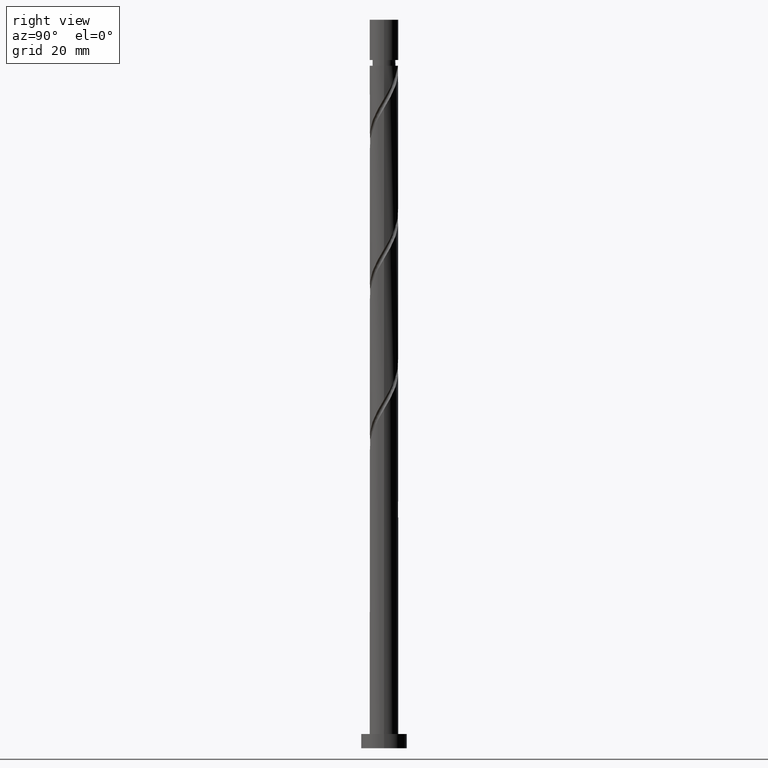
[diagram: clean part render]
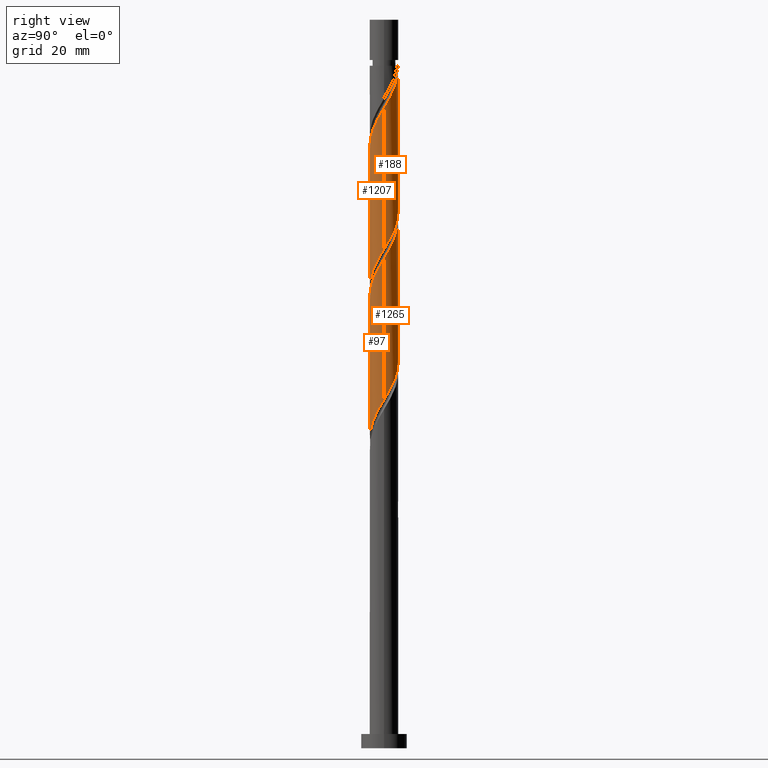
[diagram: same view with one multi-face feature highlighted, each face labeled with its STEP entity id]
A machine part, right view. The highlighted faces form ONE feature: a constant-radius fillet chain: 4 tangent blend faces with common blend radius 5 mm. The faces share edges in the B-rep.
Their STEP definitions:
[1] entity #97 (Cylinder):
#58 = CARTESIAN_POINT ( 'NONE',  ( 4.707916197378425593, -1.775642098820954251, 167.6577963200258523 ) ) ;
#63 = CARTESIAN_POINT ( 'NONE',  ( 5.000000000000007105, -5.597165070572337611E-16, 170.6707792421198064 ) ) ;
#65 = CARTESIAN_POINT ( 'NONE',  ( -3.210609744079814032, -3.833012532097933356, 151.7202963200258807 ) ) ;
#71 = CARTESIAN_POINT ( 'NONE',  ( 3.210609744079810035, -3.833012532097932468, 114.2202963200259234 ) ) ;
#75 = CARTESIAN_POINT ( 'NONE',  ( -4.900000000000006573, -0.9949874371066218526, 146.0952963200258239 ) ) ;
#92 = CARTESIAN_POINT ( 'NONE',  ( -1.547084842617166611, -4.787891840297518797, 105.7827963200259234 ) ) ;
#97 = ADVANCED_FACE ( 'NONE', ( #746 ), #1025, .T. ) ;
#100 = CARTESIAN_POINT ( 'NONE',  ( -3.833012532097932024, -3.210609744079810035, 101.0952963200259376 ) ) ;
#110 = CARTESIAN_POINT ( 'NONE',  ( -4.998552303470702896, -0.1203115516804380697, 95.47029632002598021 ) ) ;
#198 =( BOUNDED_CURVE ( )  B_SPLINE_CURVE ( 2, ( #812, #1881, #1117, #1276, #1849, #652, #672, #545, #71, #1237, #1839, #1126, #389, #1259, #520, #1703, #377, #92, #1268, #1728, #1869, #1722, #100, #406, #1582, #1167, #1144, #871, #110, #1452, #854 ),
 .UNSPECIFIED., .F., .T. ) 
 B_SPLINE_CURVE_WITH_KNOTS ( ( 3, 2, 2, 2, 2, 2, 2, 2, 2, 2, 2, 2, 2, 2, 2, 3 ),
 ( 0.8045303401299220836, 0.8125000000000000000, 0.8214285714285713969, 0.8303571428571429047, 0.8392857142857143016, 0.8482142857142856984, 0.8571428571428570953, 0.8660714285714286031, 0.8750000000000000000, 0.8839285714285713969, 0.8928571428571429047, 0.9017857142857143016, 0.9107142857142856984, 0.9196428571428570953, 0.9285714285714286031, 0.9295303401299224166 ),
 .UNSPECIFIED. ) 
 CURVE ( )  GEOMETRIC_REPRESENTATION_ITEM ( )  RATIONAL_B_SPLINE_CURVE ( ( 0.9079949616361926434, 0.9039886423360559142, 0.9090909090909224943, 0.9033747362665975889, 0.9090909090909224943, 0.9033747362665975889, 0.9090909090909224943, 0.9033747362665975889, 0.9090909090909224943, 0.9033747362665975889, 0.9090909090909224943, 0.9033747362665975889, 0.9090909090909224943, 0.9033747362665975889, 0.9090909090909224943, 0.9033747362665975889, 0.9090909090909224943, 0.9033747362665975889, 0.9090909090909224943, 0.9033747362665975889, 0.9090909090909224943, 0.9033747362665975889, 0.9090909090909224943, 0.9033747362665975889, 0.9090909090909224943, 0.9033747362665975889, 0.9090909090909224943, 0.9033747362665975889, 0.9090909090909224943, 0.9084770030214640579, 0.9079949616361921994 ) ) 
 REPRESENTATION_ITEM ( '' )  );
#199 = CARTESIAN_POINT ( 'NONE',  ( -4.323590631524826478, -2.573702359565722020, 148.9077963200258807 ) ) ;
#210 = CARTESIAN_POINT ( 'NONE',  ( -4.787891840297527679, -1.547084842617167055, 147.0327963200258523 ) ) ;
#219 = ORIENTED_EDGE ( 'NONE', *, *, #1058, .F. ) ;
#227 = CARTESIAN_POINT ( 'NONE',  ( 4.451338784106885882, -2.277187526117663285, 166.7202963200258523 ) ) ;
#258 = DIRECTION ( 'NONE',  ( -0.000000000000000000, -0.000000000000000000, -1.000000000000000000 ) ) ;
#261 = ORIENTED_EDGE ( 'NONE', *, *, #1032, .F. ) ;
#352 = CARTESIAN_POINT ( 'NONE',  ( 3.022483026463119060, -3.983038583135042110, 162.9702963200258239 ) ) ;
#360 = CARTESIAN_POINT ( 'NONE',  ( -3.983038583135042110, -3.022483026463119060, 149.8452963200259092 ) ) ;
#370 = CARTESIAN_POINT ( 'NONE',  ( 3.471263693360518765, -3.642486534745257742, 163.9077963200258807 ) ) ;
#377 = CARTESIAN_POINT ( 'NONE',  ( -0.9949874371066225187, -4.900000000000001243, 106.7202963200259234 ) ) ;
#389 = CARTESIAN_POINT ( 'NONE',  ( 1.229577616888952285, -4.846456322308672959, 110.4702963200259234 ) ) ;
#406 = CARTESIAN_POINT ( 'NONE',  ( -4.194761370835347059, -2.778732953414366769, 100.1577963200258949 ) ) ;
#453 = LINE ( 'NONE', #1758, #934 ) ;
#485 = CARTESIAN_POINT ( 'NONE',  ( 4.984996447238924766, -0.6835131349569570913, 169.5327963200259092 ) ) ;
#493 = CARTESIAN_POINT ( 'NONE',  ( -5.000000000000007994, -8.955464112915739142E-17, 144.4207792421198917 ) ) ;
#514 = CARTESIAN_POINT ( 'NONE',  ( 5.000000000000000000, 6.123233995736766282E-16, 254.0000000000000000 ) ) ;
#520 = CARTESIAN_POINT ( 'NONE',  ( 0.1203115516804378615, -4.998552303470702896, 108.5952963200259234 ) ) ;
#545 = CARTESIAN_POINT ( 'NONE',  ( 3.642486534745251969, -3.471263693360514768, 115.1577963200258807 ) ) ;
#638 = CARTESIAN_POINT ( 'NONE',  ( -2.778732953414371654, -4.194761370835351499, 152.6577963200258523 ) ) ;
#647 = CARTESIAN_POINT ( 'NONE',  ( 4.998552303470706448, -0.1203115516804401514, 170.4702963200257955 ) ) ;
#652 = CARTESIAN_POINT ( 'NONE',  ( 4.323590631524821148, -2.573702359565720688, 117.0327963200259234 ) ) ;
#655 = CARTESIAN_POINT ( 'NONE',  ( -1.775642098820954251, -4.707916197378425593, 154.5327963200259092 ) ) ;
#666 = CARTESIAN_POINT ( 'NONE',  ( 2.573702359565722020, -4.323590631524826478, 162.0327963200259092 ) ) ;
#672 = CARTESIAN_POINT ( 'NONE',  ( 3.983038583135037225, -3.022483026463118172, 116.0952963200259518 ) ) ;
#746 = FACE_OUTER_BOUND ( 'NONE', #1065, .T. ) ;
#788 = CARTESIAN_POINT ( 'NONE',  ( -3.642486534745257742, -3.471263693360518765, 150.7827963200259092 ) ) ;
#799 = CARTESIAN_POINT ( 'NONE',  ( 4.194761370835351499, -2.778732953414372098, 165.7827963200258807 ) ) ;
#807 = CARTESIAN_POINT ( 'NONE',  ( -0.1203115516804397211, -4.998552303470706448, 157.3452963200258239 ) ) ;
#812 = CARTESIAN_POINT ( 'NONE',  ( 5.000000000000000000, -1.873184576951555267E-15, 121.5198133979319834 ) ) ;
#815 = CARTESIAN_POINT ( 'NONE',  ( 5.000000000000007105, -0.06016448583195296157, 170.5704165538947166 ) ) ;
#854 = CARTESIAN_POINT ( 'NONE',  ( -5.000000000000001776, 2.925451610219162544E-14, 95.26981339793194081 ) ) ;
#867 = VERTEX_POINT ( 'NONE', #1322 ) ;
#871 = CARTESIAN_POINT ( 'NONE',  ( -4.984996447238921213, -0.6835131349569537607, 96.40779632002589494 ) ) ;
#888 = DIRECTION ( 'NONE',  ( -0.000000000000000000, -0.000000000000000000, -1.000000000000000000 ) ) ;
#934 = VECTOR ( 'NONE', #258, 1000.000000000000000 ) ;
#975 = CARTESIAN_POINT ( 'NONE',  ( 5.000000000000000000, -1.873184576951555267E-15, 121.5198133979319834 ) ) ;
#999 = AXIS2_PLACEMENT_3D ( 'NONE', #1773, #888, #1218 ) ;
#1011 = ORIENTED_EDGE ( 'NONE', *, *, #1906, .T. ) ;
#1025 = CYLINDRICAL_SURFACE ( 'NONE', #999, 5.000000000000000000 ) ;
#1032 = EDGE_CURVE ( 'NONE', #1354, #1806, #1776, .T. ) ;
#1058 = EDGE_CURVE ( 'NONE', #1806, #1254, #1824, .T. ) ;
#1065 = EDGE_LOOP ( 'NONE', ( #219, #261, #1011, #1530 ) ) ;
#1072 = CARTESIAN_POINT ( 'NONE',  ( -4.555741235911176190, -2.060393601091443205, 147.9702963200258807 ) ) ;
#1079 = CARTESIAN_POINT ( 'NONE',  ( -1.229577616888955394, -4.846456322308677400, 155.4702963200258523 ) ) ;
#1100 = CARTESIAN_POINT ( 'NONE',  ( -2.277187526117662841, -4.451338784106885882, 153.5952963200258523 ) ) ;
#1110 = VECTOR ( 'NONE', #1833, 1000.000000000000000 ) ;
#1117 = CARTESIAN_POINT ( 'NONE',  ( 4.900000000000001243, -0.9949874371066227408, 119.8452963200259376 ) ) ;
#1126 = CARTESIAN_POINT ( 'NONE',  ( 1.775642098820950698, -4.707916197378419376, 111.4077963200259092 ) ) ;
#1144 = CARTESIAN_POINT ( 'NONE',  ( -4.846456322308672959, -1.229577616888952507, 97.34529632002595179 ) ) ;
#1167 = CARTESIAN_POINT ( 'NONE',  ( -4.707916197378419376, -1.775642098820950698, 98.28279632002590915 ) ) ;
#1171 = CARTESIAN_POINT ( 'NONE',  ( -5.000000000000007105, -8.955464112915740375E-17, 144.4207792421198917 ) ) ;
#1218 = DIRECTION ( 'NONE',  ( -1.000000000000000000, 0.000000000000000000, 0.000000000000000000 ) ) ;
#1224 = CARTESIAN_POINT ( 'NONE',  ( 5.000000000000007994, -5.597165070572337611E-16, 170.6707792421197780 ) ) ;
#1233 = CARTESIAN_POINT ( 'NONE',  ( 0.4428900315960768164, -5.012108159702486354, 158.2827963200259092 ) ) ;
#1237 = CARTESIAN_POINT ( 'NONE',  ( 2.778732953414366325, -4.194761370835347059, 113.2827963200259092 ) ) ;
#1243 = CARTESIAN_POINT ( 'NONE',  ( 0.9949874371066214085, -4.900000000000006573, 159.2202963200258239 ) ) ;
#1254 = VERTEX_POINT ( 'NONE', #975 ) ;
#1259 = CARTESIAN_POINT ( 'NONE',  ( 0.6835131349569536496, -4.984996447238921213, 109.5327963200258949 ) ) ;
#1268 = CARTESIAN_POINT ( 'NONE',  ( -2.060393601091443649, -4.555741235911171749, 104.8452963200259376 ) ) ;
#1276 = CARTESIAN_POINT ( 'NONE',  ( 4.787891840297518797, -1.547084842617166833, 118.9077963200258949 ) ) ;
#1322 = CARTESIAN_POINT ( 'NONE',  ( -5.000000000000002665, 2.925451610219162544E-14, 95.26981339793194081 ) ) ;
#1354 = VERTEX_POINT ( 'NONE', #1171 ) ;
#1377 = CARTESIAN_POINT ( 'NONE',  ( 3.833012532097933356, -3.210609744079814032, 164.8452963200258523 ) ) ;
#1386 = CARTESIAN_POINT ( 'NONE',  ( 2.060393601091443205, -4.555741235911176190, 161.0952963200258523 ) ) ;
#1395 = CARTESIAN_POINT ( 'NONE',  ( -0.6835131349569565362, -4.984996447238927431, 156.4077963200257955 ) ) ;
#1452 = CARTESIAN_POINT ( 'NONE',  ( -5.000000000000002665, -0.06016448583193004240, 95.37017608615704489 ) ) ;
#1529 = CARTESIAN_POINT ( 'NONE',  ( 1.547084842617166611, -4.787891840297527679, 160.1577963200259092 ) ) ;
#1530 = ORIENTED_EDGE ( 'NONE', *, *, #1855, .F. ) ;
#1582 = CARTESIAN_POINT ( 'NONE',  ( -4.451338784106884106, -2.277187526117659289, 99.22029632002593758 ) ) ;
#1696 = CARTESIAN_POINT ( 'NONE',  ( -5.000000000000001776, -0.5025189076296279200, 145.2590503210835209 ) ) ;
#1703 = CARTESIAN_POINT ( 'NONE',  ( -0.4428900315960780931, -5.012108159702478360, 107.6577963200258949 ) ) ;
#1722 = CARTESIAN_POINT ( 'NONE',  ( -3.471263693360514768, -3.642486534745251969, 102.0327963200259234 ) ) ;
#1728 = CARTESIAN_POINT ( 'NONE',  ( -2.573702359565720688, -4.323590631524821148, 103.9077963200259092 ) ) ;
#1758 = CARTESIAN_POINT ( 'NONE',  ( -5.000000000000000000, 0.000000000000000000, 254.0000000000000000 ) ) ;
#1773 = CARTESIAN_POINT ( 'NONE',  ( 0.000000000000000000, 0.000000000000000000, 254.0000000000000000 ) ) ;
#1776 =( BOUNDED_CURVE ( )  B_SPLINE_CURVE ( 2, ( #493, #1696, #75, #210, #1072, #199, #360, #788, #65, #638, #1100, #655, #1079, #1395, #807, #1233, #1243, #1529, #1386, #666, #352, #370, #1377, #799, #227, #58, #1842, #485, #647, #815, #1224 ),
 .UNSPECIFIED., .F., .T. ) 
 B_SPLINE_CURVE_WITH_KNOTS ( ( 3, 2, 2, 2, 2, 2, 2, 2, 2, 2, 2, 2, 2, 2, 2, 3 ),
 ( 0.3045303401299224166, 0.3125000000000000000, 0.3214285714285713969, 0.3303571428571429047, 0.3392857142857143016, 0.3482142857142856984, 0.3571428571428570953, 0.3660714285714286031, 0.3750000000000000000, 0.3839285714285713969, 0.3928571428571429047, 0.4017857142857143016, 0.4107142857142856984, 0.4196428571428570953, 0.4285714285714286031, 0.4295303401299220836 ),
 .UNSPECIFIED. ) 
 CURVE ( )  GEOMETRIC_REPRESENTATION_ITEM ( )  RATIONAL_B_SPLINE_CURVE ( ( 0.9079949616361986386, 0.9039886423360623535, 0.9090909090909289336, 0.9033747362666038061, 0.9090909090909289336, 0.9033747362666038061, 0.9090909090909289336, 0.9033747362666038061, 0.9090909090909289336, 0.9033747362666038061, 0.9090909090909289336, 0.9033747362666038061, 0.9090909090909289336, 0.9033747362666038061, 0.9090909090909289336, 0.9033747362666038061, 0.9090909090909289336, 0.9033747362666038061, 0.9090909090909289336, 0.9033747362666038061, 0.9090909090909289336, 0.9033747362666038061, 0.9090909090909289336, 0.9033747362666038061, 0.9090909090909289336, 0.9033747362666038061, 0.9090909090909289336, 0.9033747362666038061, 0.9090909090909289336, 0.9084770030214706082, 0.9079949616361988607 ) ) 
 REPRESENTATION_ITEM ( '' )  );
#1806 = VERTEX_POINT ( 'NONE', #63 ) ;
#1824 = LINE ( 'NONE', #514, #1110 ) ;
#1833 = DIRECTION ( 'NONE',  ( -0.000000000000000000, -0.000000000000000000, -1.000000000000000000 ) ) ;
#1839 = CARTESIAN_POINT ( 'NONE',  ( 2.277187526117657956, -4.451338784106884106, 112.3452963200259518 ) ) ;
#1842 = CARTESIAN_POINT ( 'NONE',  ( 4.846456322308677400, -1.229577616888955394, 168.5952963200258523 ) ) ;
#1849 = CARTESIAN_POINT ( 'NONE',  ( 4.555741235911171749, -2.060393601091444093, 117.9702963200259234 ) ) ;
#1855 = EDGE_CURVE ( 'NONE', #1254, #867, #198, .T. ) ;
#1869 = CARTESIAN_POINT ( 'NONE',  ( -3.022483026463118172, -3.983038583135037225, 102.9702963200259092 ) ) ;
#1881 = CARTESIAN_POINT ( 'NONE',  ( 4.999999999999999112, -0.5025189076296083801, 120.6815423189683543 ) ) ;
#1906 = EDGE_CURVE ( 'NONE', #1354, #867, #453, .T. ) ;
[2] entity #1265 (Cylinder):
#34 = CARTESIAN_POINT ( 'NONE',  ( 0.1203115516804404844, 4.998552303470705560, 183.5952963200258523 ) ) ;
#55 = CARTESIAN_POINT ( 'NONE',  ( -5.000000000000007994, 0.06016448583195928984, 196.8204165538947450 ) ) ;
#63 = CARTESIAN_POINT ( 'NONE',  ( 5.000000000000007105, -5.597165070572337611E-16, 170.6707792421198064 ) ) ;
#74 = CARTESIAN_POINT ( 'NONE',  ( 4.451338784106884106, 2.277187526117657956, 125.4702963200259376 ) ) ;
#94 = CARTESIAN_POINT ( 'NONE',  ( -1.775642098820951142, 4.707916197378419376, 137.6577963200259092 ) ) ;
#104 = CARTESIAN_POINT ( 'NONE',  ( 3.471263693360515212, 3.642486534745251081, 128.2827963200259376 ) ) ;
#113 = DIRECTION ( 'NONE',  ( -0.000000000000000000, -0.000000000000000000, -1.000000000000000000 ) ) ;
#214 = CARTESIAN_POINT ( 'NONE',  ( 1.775642098820955139, 4.707916197378424705, 180.7827963200258807 ) ) ;
#224 = DIRECTION ( 'NONE',  ( -0.000000000000000000, -0.000000000000000000, -1.000000000000000000 ) ) ;
#226 = CARTESIAN_POINT ( 'NONE',  ( -0.6835131349569543158, 4.984996447238921213, 135.7827963200258807 ) ) ;
#235 = CARTESIAN_POINT ( 'NONE',  ( 0.4428900315960774825, 5.012108159702478360, 133.9077963200258807 ) ) ;
#243 = CARTESIAN_POINT ( 'NONE',  ( -4.555741235911171749, 2.060393601091443649, 144.2202963200258807 ) ) ;
#252 = CARTESIAN_POINT ( 'NONE',  ( 0.9949874371066231848, 4.900000000000001243, 132.9702963200259376 ) ) ;
#262 = CYLINDRICAL_SURFACE ( 'NONE', #292, 5.000000000000000000 ) ;
#292 = AXIS2_PLACEMENT_3D ( 'NONE', #1575, #113, #1109 ) ;
#319 = CARTESIAN_POINT ( 'NONE',  ( -1.547084842617167277, 4.787891840297527679, 186.4077963200258807 ) ) ;
#332 = ORIENTED_EDGE ( 'NONE', *, *, #1818, .F. ) ;
#338 = CARTESIAN_POINT ( 'NONE',  ( 5.000000000000007105, 0.5025189076296064927, 171.5090503210834356 ) ) ;
#348 = CARTESIAN_POINT ( 'NONE',  ( -3.471263693360518765, 3.642486534745257742, 190.1577963200258807 ) ) ;
#358 = CARTESIAN_POINT ( 'NONE',  ( -4.846456322308677400, 1.229577616888954728, 194.8452963200258523 ) ) ;
#380 = CARTESIAN_POINT ( 'NONE',  ( -4.323590631524821148, 2.573702359565719799, 143.2827963200259092 ) ) ;
#392 = CARTESIAN_POINT ( 'NONE',  ( 3.833012532097932468, 3.210609744079810035, 127.3452963200259518 ) ) ;
#402 = CARTESIAN_POINT ( 'NONE',  ( -4.999999999999999112, 0.5025189076296077140, 146.9315423189683827 ) ) ;
#409 = CARTESIAN_POINT ( 'NONE',  ( 4.707916197378419376, 1.775642098820950032, 124.5327963200258949 ) ) ;
#423 = CARTESIAN_POINT ( 'NONE',  ( -5.000000000000007105, 6.716598084686803555E-16, 196.9207792421197780 ) ) ;
#464 = CARTESIAN_POINT ( 'NONE',  ( -5.000000000000007105, 6.716598084686803555E-16, 196.9207792421197780 ) ) ;
#472 = CARTESIAN_POINT ( 'NONE',  ( -2.573702359565723352, 4.323590631524826478, 188.2827963200258807 ) ) ;
#483 = CARTESIAN_POINT ( 'NONE',  ( -4.707916197378425593, 1.775642098820954029, 193.9077963200258239 ) ) ;
#491 = CARTESIAN_POINT ( 'NONE',  ( -2.060393601091443649, 4.555741235911176190, 187.3452963200259092 ) ) ;
#499 = CARTESIAN_POINT ( 'NONE',  ( 5.000000000000007994, -5.597165070572337611E-16, 170.6707792421197780 ) ) ;
#514 = CARTESIAN_POINT ( 'NONE',  ( 5.000000000000000000, 6.123233995736766282E-16, 254.0000000000000000 ) ) ;
#533 = CARTESIAN_POINT ( 'NONE',  ( -4.787891840297518797, 1.547084842617166389, 145.1577963200258807 ) ) ;
#548 = CARTESIAN_POINT ( 'NONE',  ( 4.194761370835347059, 2.778732953414365880, 126.4077963200259092 ) ) ;
#615 = CARTESIAN_POINT ( 'NONE',  ( 0.6835131349569570913, 4.984996447238924766, 182.6577963200258807 ) ) ;
#625 = CARTESIAN_POINT ( 'NONE',  ( -0.9949874371066207424, 4.900000000000006573, 185.4702963200258523 ) ) ;
#648 = VERTEX_POINT ( 'NONE', #694 ) ;
#674 = CARTESIAN_POINT ( 'NONE',  ( -1.229577616888952507, 4.846456322308672959, 136.7202963200259376 ) ) ;
#683 = FACE_OUTER_BOUND ( 'NONE', #1005, .T. ) ;
#693 = CARTESIAN_POINT ( 'NONE',  ( -3.642486534745251969, 3.471263693360514324, 141.4077963200259092 ) ) ;
#694 = CARTESIAN_POINT ( 'NONE',  ( -5.000000000000002665, 1.365708277219659713E-15, 147.7698133979319834 ) ) ;
#796 = CARTESIAN_POINT ( 'NONE',  ( -4.984996447238927431, 0.6835131349569563142, 195.7827963200258807 ) ) ;
#832 = CARTESIAN_POINT ( 'NONE',  ( 4.846456322308673847, 1.229577616888951841, 123.5952963200259376 ) ) ;
#840 = CARTESIAN_POINT ( 'NONE',  ( -4.900000000000001243, 0.9949874371066220746, 146.0952963200259660 ) ) ;
#850 = CARTESIAN_POINT ( 'NONE',  ( 4.998552303470702896, 0.1203115516804376256, 121.7202963200259376 ) ) ;
#902 = CARTESIAN_POINT ( 'NONE',  ( 3.210609744079814032, 3.833012532097933356, 177.9702963200258807 ) ) ;
#929 = CARTESIAN_POINT ( 'NONE',  ( -0.4428900315960763168, 5.012108159702486354, 184.5327963200258239 ) ) ;
#944 = LINE ( 'NONE', #971, #1081 ) ;
#957 = CARTESIAN_POINT ( 'NONE',  ( -2.778732953414366769, 4.194761370835347059, 139.5327963200258807 ) ) ;
#965 = CARTESIAN_POINT ( 'NONE',  ( 3.022483026463119060, 3.983038583135037225, 129.2202963200259376 ) ) ;
#971 = CARTESIAN_POINT ( 'NONE',  ( -5.000000000000000000, 0.000000000000000000, 254.0000000000000000 ) ) ;
#975 = CARTESIAN_POINT ( 'NONE',  ( 5.000000000000000000, -1.873184576951555267E-15, 121.5198133979319834 ) ) ;
#1005 = EDGE_LOOP ( 'NONE', ( #1613, #1540, #1676, #332 ) ) ;
#1039 = CARTESIAN_POINT ( 'NONE',  ( 4.555741235911176190, 2.060393601091443205, 174.2202963200258239 ) ) ;
#1058 = EDGE_CURVE ( 'NONE', #1806, #1254, #1824, .T. ) ;
#1076 = CARTESIAN_POINT ( 'NONE',  ( 3.642486534745258187, 3.471263693360517433, 177.0327963200258239 ) ) ;
#1081 = VECTOR ( 'NONE', #224, 1000.000000000000000 ) ;
#1087 = CARTESIAN_POINT ( 'NONE',  ( 1.547084842617167055, 4.787891840297518797, 132.0327963200259376 ) ) ;
#1099 = CARTESIAN_POINT ( 'NONE',  ( 2.573702359565720688, 4.323590631524821148, 130.1577963200258807 ) ) ;
#1108 =( BOUNDED_CURVE ( )  B_SPLINE_CURVE ( 2, ( #1414, #402, #840, #533, #243, #380, #1412, #693, #1429, #957, #1731, #94, #674, #226, #1695, #235, #252, #1087, #1873, #1099, #965, #104, #392, #548, #74, #409, #832, #1278, #850, #1440, #1252 ),
 .UNSPECIFIED., .F., .T. ) 
 B_SPLINE_CURVE_WITH_KNOTS ( ( 3, 2, 2, 2, 2, 2, 2, 2, 2, 2, 2, 2, 2, 2, 2, 3 ),
 ( 0.6795303401299220836, 0.6875000000000000000, 0.6964285714285713969, 0.7053571428571429047, 0.7142857142857143016, 0.7232142857142856984, 0.7321428571428570953, 0.7410714285714286031, 0.7500000000000000000, 0.7589285714285713969, 0.7678571428571429047, 0.7767857142857143016, 0.7857142857142856984, 0.7946428571428570953, 0.8035714285714286031, 0.8045303401299220836 ),
 .UNSPECIFIED. ) 
 CURVE ( )  GEOMETRIC_REPRESENTATION_ITEM ( )  RATIONAL_B_SPLINE_CURVE ( ( 0.9079949616361926434, 0.9039886423360559142, 0.9090909090909224943, 0.9033747362665975889, 0.9090909090909224943, 0.9033747362665975889, 0.9090909090909224943, 0.9033747362665975889, 0.9090909090909224943, 0.9033747362665975889, 0.9090909090909224943, 0.9033747362665975889, 0.9090909090909224943, 0.9033747362665975889, 0.9090909090909224943, 0.9033747362665975889, 0.9090909090909224943, 0.9033747362665975889, 0.9090909090909224943, 0.9033747362665975889, 0.9090909090909224943, 0.9033747362665975889, 0.9090909090909224943, 0.9033747362665975889, 0.9090909090909224943, 0.9033747362665975889, 0.9090909090909224943, 0.9033747362665975889, 0.9090909090909224943, 0.9084770030214643910, 0.9079949616361926434 ) ) 
 REPRESENTATION_ITEM ( '' )  );
#1109 = DIRECTION ( 'NONE',  ( -1.000000000000000000, 0.000000000000000000, 0.000000000000000000 ) ) ;
#1110 = VECTOR ( 'NONE', #1833, 1000.000000000000000 ) ;
#1162 =( BOUNDED_CURVE ( )  B_SPLINE_CURVE ( 2, ( #499, #338, #1190, #1383, #1039, #1221, #1348, #1076, #902, #1494, #1642, #214, #1821, #615, #34, #929, #625, #319, #491, #472, #1338, #348, #1516, #1526, #1213, #483, #358, #796, #1789, #55, #464 ),
 .UNSPECIFIED., .F., .T. ) 
 B_SPLINE_CURVE_WITH_KNOTS ( ( 3, 2, 2, 2, 2, 2, 2, 2, 2, 2, 2, 2, 2, 2, 2, 3 ),
 ( 0.4295303401299220836, 0.4375000000000000000, 0.4464285714285713969, 0.4553571428571429047, 0.4642857142857143016, 0.4732142857142856984, 0.4821428571428570953, 0.4910714285714286031, 0.5000000000000000000, 0.5089285714285713969, 0.5178571428571427937, 0.5267857142857143016, 0.5357142857142856984, 0.5446428571428572063, 0.5535714285714286031, 0.5545303401299219725 ),
 .UNSPECIFIED. ) 
 CURVE ( )  GEOMETRIC_REPRESENTATION_ITEM ( )  RATIONAL_B_SPLINE_CURVE ( ( 0.9079949616361988607, 0.9039886423360621315, 0.9090909090909289336, 0.9033747362666038061, 0.9090909090909289336, 0.9033747362666038061, 0.9090909090909289336, 0.9033747362666038061, 0.9090909090909289336, 0.9033747362666038061, 0.9090909090909289336, 0.9033747362666038061, 0.9090909090909289336, 0.9033747362666038061, 0.9090909090909289336, 0.9033747362666038061, 0.9090909090909289336, 0.9033747362666038061, 0.9090909090909289336, 0.9033747362666038061, 0.9090909090909289336, 0.9033747362666038061, 0.9090909090909289336, 0.9033747362666038061, 0.9090909090909289336, 0.9033747362666038061, 0.9090909090909289336, 0.9033747362666038061, 0.9090909090909289336, 0.9084770030214707193, 0.9079949616361990827 ) ) 
 REPRESENTATION_ITEM ( '' )  );
#1190 = CARTESIAN_POINT ( 'NONE',  ( 4.900000000000006573, 0.9949874371066211864, 172.3452963200257955 ) ) ;
#1213 = CARTESIAN_POINT ( 'NONE',  ( -4.451338784106885882, 2.277187526117662841, 192.9702963200258239 ) ) ;
#1221 = CARTESIAN_POINT ( 'NONE',  ( 4.323590631524826478, 2.573702359565720688, 175.1577963200258807 ) ) ;
#1241 = EDGE_CURVE ( 'NONE', #648, #1254, #1108, .T. ) ;
#1252 = CARTESIAN_POINT ( 'NONE',  ( 5.000000000000000000, -1.873184576951555267E-15, 121.5198133979319834 ) ) ;
#1254 = VERTEX_POINT ( 'NONE', #975 ) ;
#1265 = ADVANCED_FACE ( 'NONE', ( #683 ), #262, .T. ) ;
#1278 = CARTESIAN_POINT ( 'NONE',  ( 4.984996447238921213, 0.6835131349569533166, 122.6577963200259234 ) ) ;
#1338 = CARTESIAN_POINT ( 'NONE',  ( -3.022483026463119060, 3.983038583135042110, 189.2202963200258239 ) ) ;
#1348 = CARTESIAN_POINT ( 'NONE',  ( 3.983038583135042554, 3.022483026463119060, 176.0952963200258239 ) ) ;
#1383 = CARTESIAN_POINT ( 'NONE',  ( 4.787891840297527679, 1.547084842617166389, 173.2827963200259092 ) ) ;
#1412 = CARTESIAN_POINT ( 'NONE',  ( -3.983038583135037225, 3.022483026463118172, 142.3452963200259376 ) ) ;
#1414 = CARTESIAN_POINT ( 'NONE',  ( -5.000000000000002665, 1.365708277219659713E-15, 147.7698133979319834 ) ) ;
#1429 = CARTESIAN_POINT ( 'NONE',  ( -3.210609744079810035, 3.833012532097932024, 140.4702963200259092 ) ) ;
#1440 = CARTESIAN_POINT ( 'NONE',  ( 5.000000000000000888, 0.06016448583195046357, 121.6201760861570449 ) ) ;
#1494 = CARTESIAN_POINT ( 'NONE',  ( 2.778732953414372098, 4.194761370835351499, 178.9077963200259092 ) ) ;
#1516 = CARTESIAN_POINT ( 'NONE',  ( -3.833012532097933356, 3.210609744079813144, 191.0952963200258523 ) ) ;
#1526 = CARTESIAN_POINT ( 'NONE',  ( -4.194761370835351499, 2.778732953414371654, 192.0327963200258807 ) ) ;
#1540 = ORIENTED_EDGE ( 'NONE', *, *, #1058, .T. ) ;
#1575 = CARTESIAN_POINT ( 'NONE',  ( 0.000000000000000000, 0.000000000000000000, 254.0000000000000000 ) ) ;
#1613 = ORIENTED_EDGE ( 'NONE', *, *, #1647, .F. ) ;
#1642 = CARTESIAN_POINT ( 'NONE',  ( 2.277187526117663285, 4.451338784106885882, 179.8452963200258807 ) ) ;
#1647 = EDGE_CURVE ( 'NONE', #1806, #1908, #1162, .T. ) ;
#1676 = ORIENTED_EDGE ( 'NONE', *, *, #1241, .F. ) ;
#1695 = CARTESIAN_POINT ( 'NONE',  ( -0.1203115516804385138, 4.998552303470702896, 134.8452963200259660 ) ) ;
#1731 = CARTESIAN_POINT ( 'NONE',  ( -2.277187526117659289, 4.451338784106883217, 138.5952963200259660 ) ) ;
#1789 = CARTESIAN_POINT ( 'NONE',  ( -4.998552303470706448, 0.1203115516804394991, 196.7202963200258239 ) ) ;
#1806 = VERTEX_POINT ( 'NONE', #63 ) ;
#1818 = EDGE_CURVE ( 'NONE', #1908, #648, #944, .T. ) ;
#1821 = CARTESIAN_POINT ( 'NONE',  ( 1.229577616888955616, 4.846456322308677400, 181.7202963200258807 ) ) ;
#1824 = LINE ( 'NONE', #514, #1110 ) ;
#1833 = DIRECTION ( 'NONE',  ( -0.000000000000000000, -0.000000000000000000, -1.000000000000000000 ) ) ;
#1873 = CARTESIAN_POINT ( 'NONE',  ( 2.060393601091444093, 4.555741235911170861, 131.0952963200259376 ) ) ;
#1908 = VERTEX_POINT ( 'NONE', #423 ) ;
[3] entity #1207 (Cylinder):
#3 = CARTESIAN_POINT ( 'NONE',  ( 3.210609744079810035, -3.833012532097932468, 166.7202963200259376 ) ) ;
#13 = CARTESIAN_POINT ( 'NONE',  ( -4.451338784106884106, -2.277187526117659289, 151.7202963200259376 ) ) ;
#23 = CARTESIAN_POINT ( 'NONE',  ( -4.846456322308672959, -1.229577616888952507, 149.8452963200259944 ) ) ;
#46 = CARTESIAN_POINT ( 'NONE',  ( -2.573702359565720688, -4.323590631524821148, 156.4077963200258523 ) ) ;
#87 = DIRECTION ( 'NONE',  ( -0.000000000000000000, -0.000000000000000000, -1.000000000000000000 ) ) ;
#120 = ORIENTED_EDGE ( 'NONE', *, *, #1591, .F. ) ;
#123 = CARTESIAN_POINT ( 'NONE',  ( 2.573702359565722020, -4.323590631524826478, 214.5327963200258239 ) ) ;
#130 = VERTEX_POINT ( 'NONE', #1480 ) ;
#134 = AXIS2_PLACEMENT_3D ( 'NONE', #1559, #87, #236 ) ;
#150 = CARTESIAN_POINT ( 'NONE',  ( 3.983038583135037225, -3.022483026463118172, 168.5952963200259376 ) ) ;
#184 = CARTESIAN_POINT ( 'NONE',  ( 0.1203115516804378615, -4.998552303470702896, 161.0952963200259092 ) ) ;
#196 = CARTESIAN_POINT ( 'NONE',  ( -5.000000000000001776, -0.06016448583195094235, 147.8701760861570449 ) ) ;
#224 = DIRECTION ( 'NONE',  ( -0.000000000000000000, -0.000000000000000000, -1.000000000000000000 ) ) ;
#236 = DIRECTION ( 'NONE',  ( -1.000000000000000000, 0.000000000000000000, 0.000000000000000000 ) ) ;
#246 = CARTESIAN_POINT ( 'NONE',  ( -2.277187526117662841, -4.451338784106885882, 206.0952963200258239 ) ) ;
#275 = CARTESIAN_POINT ( 'NONE',  ( -5.000000000000007994, -0.5025189076296001645, 197.7590503210834356 ) ) ;
#403 = CARTESIAN_POINT ( 'NONE',  ( -0.6835131349569565362, -4.984996447238927431, 208.9077963200258807 ) ) ;
#423 = CARTESIAN_POINT ( 'NONE',  ( -5.000000000000007105, 6.716598084686803555E-16, 196.9207792421197780 ) ) ;
#430 = CARTESIAN_POINT ( 'NONE',  ( 4.984996447238924766, -0.6835131349569570913, 222.0327963200258523 ) ) ;
#542 = CARTESIAN_POINT ( 'NONE',  ( -4.555741235911176190, -2.060393601091443205, 200.4702963200258239 ) ) ;
#550 = CARTESIAN_POINT ( 'NONE',  ( -2.778732953414371654, -4.194761370835351499, 205.1577963200258523 ) ) ;
#582 = ORIENTED_EDGE ( 'NONE', *, *, #764, .F. ) ;
#599 = CARTESIAN_POINT ( 'NONE',  ( 3.642486534745251969, -3.471263693360514768, 167.6577963200258807 ) ) ;
#606 = CARTESIAN_POINT ( 'NONE',  ( -3.471263693360514768, -3.642486534745251969, 154.5327963200258807 ) ) ;
#629 = ORIENTED_EDGE ( 'NONE', *, *, #697, .F. ) ;
#648 = VERTEX_POINT ( 'NONE', #694 ) ;
#694 = CARTESIAN_POINT ( 'NONE',  ( -5.000000000000002665, 1.365708277219659713E-15, 147.7698133979319834 ) ) ;
#697 = EDGE_CURVE ( 'NONE', #700, #130, #1569, .T. ) ;
#700 = VERTEX_POINT ( 'NONE', #1288 ) ;
#764 = EDGE_CURVE ( 'NONE', #1908, #700, #1515, .T. ) ;
#785 = CARTESIAN_POINT ( 'NONE',  ( -4.707916197378419376, -1.775642098820950698, 150.7827963200258239 ) ) ;
#834 = CARTESIAN_POINT ( 'NONE',  ( 1.547084842617166611, -4.787891840297527679, 212.6577963200258807 ) ) ;
#859 = CARTESIAN_POINT ( 'NONE',  ( -0.1203115516804397211, -4.998552303470706448, 209.8452963200257955 ) ) ;
#869 = CARTESIAN_POINT ( 'NONE',  ( 5.000000000000007105, -1.313468069894308194E-15, 223.1707792421198349 ) ) ;
#876 = CARTESIAN_POINT ( 'NONE',  ( 5.000000000000000000, -1.873184576951555267E-15, 174.0198133979319266 ) ) ;
#883 = CARTESIAN_POINT ( 'NONE',  ( 4.787891840297518797, -1.547084842617166833, 171.4077963200259092 ) ) ;
#911 = CARTESIAN_POINT ( 'NONE',  ( -0.9949874371066225187, -4.900000000000001243, 159.2202963200259376 ) ) ;
#920 = CARTESIAN_POINT ( 'NONE',  ( -1.547084842617166611, -4.787891840297518797, 158.2827963200259376 ) ) ;
#923 = FACE_OUTER_BOUND ( 'NONE', #1130, .T. ) ;
#938 = CARTESIAN_POINT ( 'NONE',  ( 2.277187526117657956, -4.451338784106884106, 164.8452963200259660 ) ) ;
#944 = LINE ( 'NONE', #971, #1081 ) ;
#958 = CYLINDRICAL_SURFACE ( 'NONE', #134, 5.000000000000000000 ) ;
#971 = CARTESIAN_POINT ( 'NONE',  ( -5.000000000000000000, 0.000000000000000000, 254.0000000000000000 ) ) ;
#977 = CARTESIAN_POINT ( 'NONE',  ( -4.900000000000006573, -0.9949874371066218526, 198.5952963200258807 ) ) ;
#996 = CARTESIAN_POINT ( 'NONE',  ( 2.060393601091443205, -4.555741235911176190, 213.5952963200257386 ) ) ;
#1006 = CARTESIAN_POINT ( 'NONE',  ( -3.642486534745257742, -3.471263693360518765, 203.2827963200258239 ) ) ;
#1049 = CARTESIAN_POINT ( 'NONE',  ( -3.833012532097932024, -3.210609744079810035, 153.5952963200259376 ) ) ;
#1062 = CARTESIAN_POINT ( 'NONE',  ( -3.022483026463118172, -3.983038583135037225, 155.4702963200259376 ) ) ;
#1070 = CARTESIAN_POINT ( 'NONE',  ( -4.194761370835347059, -2.778732953414366769, 152.6577963200259092 ) ) ;
#1081 = VECTOR ( 'NONE', #224, 1000.000000000000000 ) ;
#1112 = CARTESIAN_POINT ( 'NONE',  ( 3.022483026463119060, -3.983038583135042110, 215.4702963200258523 ) ) ;
#1130 = EDGE_LOOP ( 'NONE', ( #629, #582, #1151, #120 ) ) ;
#1131 = CARTESIAN_POINT ( 'NONE',  ( 4.451338784106885882, -2.277187526117663285, 219.2202963200258807 ) ) ;
#1151 = ORIENTED_EDGE ( 'NONE', *, *, #1818, .T. ) ;
#1152 = CARTESIAN_POINT ( 'NONE',  ( 3.471263693360518765, -3.642486534745257742, 216.4077963200259092 ) ) ;
#1183 = CARTESIAN_POINT ( 'NONE',  ( 2.778732953414366325, -4.194761370835347059, 165.7827963200259376 ) ) ;
#1207 = ADVANCED_FACE ( 'NONE', ( #923 ), #958, .T. ) ;
#1264 = CARTESIAN_POINT ( 'NONE',  ( -3.210609744079814032, -3.833012532097933356, 204.2202963200258523 ) ) ;
#1272 = CARTESIAN_POINT ( 'NONE',  ( 4.846456322308677400, -1.229577616888955394, 221.0952963200258807 ) ) ;
#1279 = CARTESIAN_POINT ( 'NONE',  ( 5.000000000000000000, 6.123233995736766282E-16, 254.0000000000000000 ) ) ;
#1288 = CARTESIAN_POINT ( 'NONE',  ( 5.000000000000007105, -1.313468069894308194E-15, 223.1707792421198349 ) ) ;
#1300 = CARTESIAN_POINT ( 'NONE',  ( -5.000000000000007105, 6.716598084686803555E-16, 196.9207792421197780 ) ) ;
#1320 = CARTESIAN_POINT ( 'NONE',  ( 4.900000000000001243, -0.9949874371066227408, 172.3452963200259092 ) ) ;
#1374 = CARTESIAN_POINT ( 'NONE',  ( -4.998552303470702896, -0.1203115516804380697, 147.9702963200259376 ) ) ;
#1402 = VECTOR ( 'NONE', #1896, 1000.000000000000000 ) ;
#1423 = CARTESIAN_POINT ( 'NONE',  ( -4.787891840297527679, -1.547084842617167055, 199.5327963200258807 ) ) ;
#1432 = CARTESIAN_POINT ( 'NONE',  ( 3.833012532097933356, -3.210609744079814032, 217.3452963200257670 ) ) ;
#1473 = CARTESIAN_POINT ( 'NONE',  ( 4.323590631524821148, -2.573702359565720688, 169.5327963200258239 ) ) ;
#1480 = CARTESIAN_POINT ( 'NONE',  ( 5.000000000000000000, -1.873184576951555267E-15, 174.0198133979319266 ) ) ;
#1506 = CARTESIAN_POINT ( 'NONE',  ( -5.000000000000002665, 1.365708277219659713E-15, 147.7698133979319834 ) ) ;
#1515 =( BOUNDED_CURVE ( )  B_SPLINE_CURVE ( 2, ( #1300, #275, #977, #1423, #542, #1590, #1745, #1006, #1264, #550, #246, #1886, #1866, #403, #859, #1909, #1876, #834, #996, #123, #1112, #1152, #1432, #1604, #1131, #1753, #1272, #430, #1577, #1614, #869 ),
 .UNSPECIFIED., .F., .T. ) 
 B_SPLINE_CURVE_WITH_KNOTS ( ( 3, 2, 2, 2, 2, 2, 2, 2, 2, 2, 2, 2, 2, 2, 2, 3 ),
 ( 0.5545303401299219725, 0.5625000000000000000, 0.5714285714285713969, 0.5803571428571427937, 0.5892857142857143016, 0.5982142857142856984, 0.6071428571428572063, 0.6160714285714286031, 0.6250000000000000000, 0.6339285714285713969, 0.6428571428571427937, 0.6517857142857143016, 0.6607142857142856984, 0.6696428571428572063, 0.6785714285714286031, 0.6795303401299219725 ),
 .UNSPECIFIED. ) 
 CURVE ( )  GEOMETRIC_REPRESENTATION_ITEM ( )  RATIONAL_B_SPLINE_CURVE ( ( 0.9079949616361990827, 0.9039886423360620205, 0.9090909090909289336, 0.9033747362666038061, 0.9090909090909289336, 0.9033747362666038061, 0.9090909090909289336, 0.9033747362666038061, 0.9090909090909289336, 0.9033747362666038061, 0.9090909090909289336, 0.9033747362666038061, 0.9090909090909289336, 0.9033747362666038061, 0.9090909090909289336, 0.9033747362666038061, 0.9090909090909289336, 0.9033747362666038061, 0.9090909090909289336, 0.9033747362666038061, 0.9090909090909289336, 0.9033747362666038061, 0.9090909090909289336, 0.9033747362666038061, 0.9090909090909289336, 0.9033747362666038061, 0.9090909090909289336, 0.9033747362666038061, 0.9090909090909289336, 0.9084770030214707193, 0.9079949616361990827 ) ) 
 REPRESENTATION_ITEM ( '' )  );
#1535 = CARTESIAN_POINT ( 'NONE',  ( -2.060393601091443649, -4.555741235911171749, 157.3452963200259092 ) ) ;
#1559 = CARTESIAN_POINT ( 'NONE',  ( 0.000000000000000000, 0.000000000000000000, 254.0000000000000000 ) ) ;
#1569 = LINE ( 'NONE', #1279, #1402 ) ;
#1577 = CARTESIAN_POINT ( 'NONE',  ( 4.998552303470706448, -0.1203115516804401514, 222.9702963200258807 ) ) ;
#1590 = CARTESIAN_POINT ( 'NONE',  ( -4.323590631524826478, -2.573702359565722020, 201.4077963200258807 ) ) ;
#1591 = EDGE_CURVE ( 'NONE', #130, #648, #1859, .T. ) ;
#1604 = CARTESIAN_POINT ( 'NONE',  ( 4.194761370835351499, -2.778732953414372098, 218.2827963200258807 ) ) ;
#1614 = CARTESIAN_POINT ( 'NONE',  ( 5.000000000000007994, -0.06016448583195994210, 223.0704165538947450 ) ) ;
#1663 = CARTESIAN_POINT ( 'NONE',  ( -0.4428900315960780931, -5.012108159702478360, 160.1577963200259092 ) ) ;
#1672 = CARTESIAN_POINT ( 'NONE',  ( 0.6835131349569536496, -4.984996447238921213, 162.0327963200259660 ) ) ;
#1745 = CARTESIAN_POINT ( 'NONE',  ( -3.983038583135042110, -3.022483026463119060, 202.3452963200258523 ) ) ;
#1753 = CARTESIAN_POINT ( 'NONE',  ( 4.707916197378425593, -1.775642098820954251, 220.1577963200258807 ) ) ;
#1769 = CARTESIAN_POINT ( 'NONE',  ( 4.999999999999997335, -0.5025189076296152635, 173.1815423189683258 ) ) ;
#1800 = CARTESIAN_POINT ( 'NONE',  ( 1.229577616888952285, -4.846456322308672959, 162.9702963200259376 ) ) ;
#1813 = CARTESIAN_POINT ( 'NONE',  ( -4.984996447238921213, -0.6835131349569537607, 148.9077963200258807 ) ) ;
#1818 = EDGE_CURVE ( 'NONE', #1908, #648, #944, .T. ) ;
#1831 = CARTESIAN_POINT ( 'NONE',  ( 1.775642098820950698, -4.707916197378419376, 163.9077963200258807 ) ) ;
#1859 =( BOUNDED_CURVE ( )  B_SPLINE_CURVE ( 2, ( #876, #1769, #1320, #883, #1923, #1473, #150, #599, #3, #1183, #938, #1831, #1800, #1672, #184, #1663, #911, #920, #1535, #46, #1062, #606, #1049, #1070, #13, #785, #23, #1813, #1374, #196, #1506 ),
 .UNSPECIFIED., .F., .T. ) 
 B_SPLINE_CURVE_WITH_KNOTS ( ( 3, 2, 2, 2, 2, 2, 2, 2, 2, 2, 2, 2, 2, 2, 2, 3 ),
 ( 0.5545303401299221946, 0.5625000000000000000, 0.5714285714285713969, 0.5803571428571429047, 0.5892857142857143016, 0.5982142857142856984, 0.6071428571428570953, 0.6160714285714286031, 0.6250000000000000000, 0.6339285714285713969, 0.6428571428571429047, 0.6517857142857143016, 0.6607142857142856984, 0.6696428571428570953, 0.6785714285714286031, 0.6795303401299220836 ),
 .UNSPECIFIED. ) 
 CURVE ( )  GEOMETRIC_REPRESENTATION_ITEM ( )  RATIONAL_B_SPLINE_CURVE ( ( 0.9079949616361926434, 0.9039886423360560253, 0.9090909090909224943, 0.9033747362665975889, 0.9090909090909224943, 0.9033747362665975889, 0.9090909090909224943, 0.9033747362665975889, 0.9090909090909224943, 0.9033747362665975889, 0.9090909090909224943, 0.9033747362665975889, 0.9090909090909224943, 0.9033747362665975889, 0.9090909090909224943, 0.9033747362665975889, 0.9090909090909224943, 0.9033747362665975889, 0.9090909090909224943, 0.9033747362665975889, 0.9090909090909224943, 0.9033747362665975889, 0.9090909090909224943, 0.9033747362665975889, 0.9090909090909224943, 0.9033747362665975889, 0.9090909090909224943, 0.9033747362665975889, 0.9090909090909224943, 0.9084770030214643910, 0.9079949616361926434 ) ) 
 REPRESENTATION_ITEM ( '' )  );
#1866 = CARTESIAN_POINT ( 'NONE',  ( -1.229577616888955394, -4.846456322308677400, 207.9702963200258523 ) ) ;
#1876 = CARTESIAN_POINT ( 'NONE',  ( 0.9949874371066214085, -4.900000000000006573, 211.7202963200258239 ) ) ;
#1886 = CARTESIAN_POINT ( 'NONE',  ( -1.775642098820954251, -4.707916197378425593, 207.0327963200259092 ) ) ;
#1896 = DIRECTION ( 'NONE',  ( -0.000000000000000000, -0.000000000000000000, -1.000000000000000000 ) ) ;
#1908 = VERTEX_POINT ( 'NONE', #423 ) ;
#1909 = CARTESIAN_POINT ( 'NONE',  ( 0.4428900315960768164, -5.012108159702486354, 210.7827963200258523 ) ) ;
#1923 = CARTESIAN_POINT ( 'NONE',  ( 4.555741235911171749, -2.060393601091444093, 170.4702963200259092 ) ) ;
[4] entity #188 (Cylinder):
#6 = CARTESIAN_POINT ( 'NONE',  ( 5.000000000000007994, 0.5025189076295996093, 224.0090503210833788 ) ) ;
#16 = CARTESIAN_POINT ( 'NONE',  ( 2.277187526117663285, 4.451338784106885882, 232.3452963200258523 ) ) ;
#36 = DIRECTION ( 'NONE',  ( -0.000000000000000000, -0.000000000000000000, -1.000000000000000000 ) ) ;
#40 = CYLINDRICAL_SURFACE ( 'NONE', #1520, 5.000000000000000000 ) ;
#112 = ORIENTED_EDGE ( 'NONE', *, *, #1181, .T. ) ;
#117 = CARTESIAN_POINT ( 'NONE',  ( -0.1203115516804385138, 4.998552303470702896, 187.3452963200259376 ) ) ;
#127 = CARTESIAN_POINT ( 'NONE',  ( 0.9949874371066231848, 4.900000000000001243, 185.4702963200259092 ) ) ;
#130 = VERTEX_POINT ( 'NONE', #1480 ) ;
#136 = VECTOR ( 'NONE', #1096, 1000.000000000000000 ) ;
#137 = CARTESIAN_POINT ( 'NONE',  ( 3.983038583135042554, 3.022483026463119060, 228.5952963200259092 ) ) ;
#140 = CARTESIAN_POINT ( 'NONE',  ( 3.022483026463119060, 3.983038583135037225, 181.7202963200259944 ) ) ;
#153 = CARTESIAN_POINT ( 'NONE',  ( 5.000000000000007105, -1.313468069894308194E-15, 223.1707792421198349 ) ) ;
#177 = ORIENTED_EDGE ( 'NONE', *, *, #697, .T. ) ;
#188 = ADVANCED_FACE ( 'NONE', ( #1785 ), #40, .T. ) ;
#268 = CARTESIAN_POINT ( 'NONE',  ( -0.9949874371066207424, 4.900000000000003020, 237.9702963200259092 ) ) ;
#304 = CARTESIAN_POINT ( 'NONE',  ( 2.778732953414372098, 4.194761370835351499, 231.4077963200258239 ) ) ;
#312 = CARTESIAN_POINT ( 'NONE',  ( 4.323590631524826478, 2.573702359565720688, 227.6577963200258523 ) ) ;
#414 = CARTESIAN_POINT ( 'NONE',  ( 4.707916197378419376, 1.775642098820950032, 177.0327963200259092 ) ) ;
#553 = CARTESIAN_POINT ( 'NONE',  ( -1.229577616888952507, 4.846456322308672959, 189.2202963200259376 ) ) ;
#563 = CARTESIAN_POINT ( 'NONE',  ( -5.000000000000000888, 7.589755835696142587E-15, 200.2698133979319266 ) ) ;
#575 = CARTESIAN_POINT ( 'NONE',  ( 4.998552303470702896, 0.1203115516804376256, 174.2202963200258807 ) ) ;
#611 = DIRECTION ( 'NONE',  ( -1.000000000000000000, 0.000000000000000000, 0.000000000000000000 ) ) ;
#619 = CARTESIAN_POINT ( 'NONE',  ( 4.900000000000006573, 0.9949874371066211864, 224.8452963200258523 ) ) ;
#628 = DIRECTION ( 'NONE',  ( -1.000000000000000000, 0.000000000000000000, 0.000000000000000000 ) ) ;
#697 = EDGE_CURVE ( 'NONE', #700, #130, #1569, .T. ) ;
#698 = CARTESIAN_POINT ( 'NONE',  ( -2.277187526117659289, 4.451338784106883217, 191.0952963200259092 ) ) ;
#700 = VERTEX_POINT ( 'NONE', #1288 ) ;
#706 = CARTESIAN_POINT ( 'NONE',  ( 3.471263693360515212, 3.642486534745251081, 180.7827963200258807 ) ) ;
#716 = CARTESIAN_POINT ( 'NONE',  ( 4.846456322308673847, 1.229577616888951841, 176.0952963200259376 ) ) ;
#726 = CARTESIAN_POINT ( 'NONE',  ( 3.210609744079814032, 3.833012532097933356, 230.4702963200258239 ) ) ;
#728 = CARTESIAN_POINT ( 'NONE',  ( 4.194761370835347059, 2.778732953414365880, 178.9077963200259092 ) ) ;
#757 = CARTESIAN_POINT ( 'NONE',  ( 1.229577616888955616, 4.846456322308677400, 234.2202963200257955 ) ) ;
#778 = CARTESIAN_POINT ( 'NONE',  ( 0.000000000000000000, 0.000000000000000000, 237.9702963200258807 ) ) ;
#846 = CARTESIAN_POINT ( 'NONE',  ( -4.323590631524821148, 2.573702359565719799, 195.7827963200259660 ) ) ;
#858 = CARTESIAN_POINT ( 'NONE',  ( -5.000000000000000888, 7.589755835696142587E-15, 200.2698133979319266 ) ) ;
#864 = EDGE_CURVE ( 'NONE', #700, #1893, #919, .T. ) ;
#878 = CARTESIAN_POINT ( 'NONE',  ( 0.1203115516804404844, 4.998552303470705560, 236.0952963200259092 ) ) ;
#880 = CARTESIAN_POINT ( 'NONE',  ( -0.6835131349569543158, 4.984996447238921213, 188.2827963200259092 ) ) ;
#895 = CARTESIAN_POINT ( 'NONE',  ( 1.775642098820955139, 4.707916197378424705, 233.2827963200258807 ) ) ;
#913 = CARTESIAN_POINT ( 'NONE',  ( 4.555741235911176190, 2.060393601091443205, 226.7202963200257955 ) ) ;
#919 =( BOUNDED_CURVE ( )  B_SPLINE_CURVE ( 2, ( #153, #6, #619, #1630, #913, #312, #137, #1312, #726, #304, #16, #895, #757, #1486, #878, #1645, #1165 ),
 .UNSPECIFIED., .F., .T. ) 
 B_SPLINE_CURVE_WITH_KNOTS ( ( 3, 2, 2, 2, 2, 2, 2, 2, 3 ),
 ( 0.6795303401299219725, 0.6875000000000000000, 0.6964285714285713969, 0.7053571428571427937, 0.7142857142857141906, 0.7232142857142855874, 0.7321428571428570953, 0.7410714285714284921, 0.7499999999999998890 ),
 .UNSPECIFIED. ) 
 CURVE ( )  GEOMETRIC_REPRESENTATION_ITEM ( )  RATIONAL_B_SPLINE_CURVE ( ( 0.9079949616361990827, 0.9039886423360620205, 0.9090909090909289336, 0.9033747362666038061, 0.9090909090909289336, 0.9033747362666038061, 0.9090909090909289336, 0.9033747362666038061, 0.9090909090909289336, 0.9033747362666038061, 0.9090909090909289336, 0.9033747362666038061, 0.9090909090909289336, 0.9033747362666038061, 0.9090909090909289336, 0.9033747362666039171, 0.9090909090909288226 ) ) 
 REPRESENTATION_ITEM ( '' )  );
#925 = CARTESIAN_POINT ( 'NONE',  ( 0.000000000000000000, 0.000000000000000000, 254.0000000000000000 ) ) ;
#991 = CARTESIAN_POINT ( 'NONE',  ( 4.984996447238921213, 0.6835131349569533166, 175.1577963200258807 ) ) ;
#1015 = ORIENTED_EDGE ( 'NONE', *, *, #864, .F. ) ;
#1027 = CARTESIAN_POINT ( 'NONE',  ( -3.983038583135037225, 3.022483026463118172, 194.8452963200259944 ) ) ;
#1080 = EDGE_LOOP ( 'NONE', ( #1015, #177, #1294, #1548, #112 ) ) ;
#1096 = DIRECTION ( 'NONE',  ( -0.000000000000000000, -0.000000000000000000, -1.000000000000000000 ) ) ;
#1134 = CARTESIAN_POINT ( 'NONE',  ( 0.4428900315960774825, 5.012108159702478360, 186.4077963200258807 ) ) ;
#1156 = CARTESIAN_POINT ( 'NONE',  ( 3.833012532097932468, 3.210609744079810035, 179.8452963200259660 ) ) ;
#1164 = VERTEX_POINT ( 'NONE', #1508 ) ;
#1165 = CARTESIAN_POINT ( 'NONE',  ( -0.9949874371066207424, 4.900000000000001243, 237.9702963200259092 ) ) ;
#1178 = CARTESIAN_POINT ( 'NONE',  ( 4.451338784106884106, 2.277187526117657956, 177.9702963200259376 ) ) ;
#1181 = EDGE_CURVE ( 'NONE', #1164, #1893, #1905, .T. ) ;
#1279 = CARTESIAN_POINT ( 'NONE',  ( 5.000000000000000000, 6.123233995736766282E-16, 254.0000000000000000 ) ) ;
#1282 = CARTESIAN_POINT ( 'NONE',  ( -1.775642098820951142, 4.707916197378419376, 190.1577963200259376 ) ) ;
#1288 = CARTESIAN_POINT ( 'NONE',  ( 5.000000000000007105, -1.313468069894308194E-15, 223.1707792421198349 ) ) ;
#1294 = ORIENTED_EDGE ( 'NONE', *, *, #1879, .F. ) ;
#1303 = CARTESIAN_POINT ( 'NONE',  ( 1.547084842617167055, 4.787891840297518797, 184.5327963200259092 ) ) ;
#1312 = CARTESIAN_POINT ( 'NONE',  ( 3.642486534745258187, 3.471263693360517433, 229.5327963200258523 ) ) ;
#1313 =( BOUNDED_CURVE ( )  B_SPLINE_CURVE ( 2, ( #563, #1461, #1912, #1927, #1777, #846, #1027, #1766, #1889, #1437, #698, #1282, #553, #880, #117, #1134, #127, #1303, #1737, #1747, #140, #706, #1156, #728, #1178, #414, #716, #991, #575, #1597, #1899 ),
 .UNSPECIFIED., .F., .T. ) 
 B_SPLINE_CURVE_WITH_KNOTS ( ( 3, 2, 2, 2, 2, 2, 2, 2, 2, 2, 2, 2, 2, 2, 2, 3 ),
 ( 0.4295303401299220836, 0.4375000000000000000, 0.4464285714285714524, 0.4553571428571428492, 0.4642857142857143016, 0.4732142857142856984, 0.4821428571428571508, 0.4910714285714285476, 0.5000000000000000000, 0.5089285714285713969, 0.5178571428571429047, 0.5267857142857143016, 0.5357142857142856984, 0.5446428571428570953, 0.5535714285714286031, 0.5545303401299221946 ),
 .UNSPECIFIED. ) 
 CURVE ( )  GEOMETRIC_REPRESENTATION_ITEM ( )  RATIONAL_B_SPLINE_CURVE ( ( 0.9079949616361926434, 0.9039886423360559142, 0.9090909090909224943, 0.9033747362665975889, 0.9090909090909224943, 0.9033747362665975889, 0.9090909090909224943, 0.9033747362665975889, 0.9090909090909224943, 0.9033747362665975889, 0.9090909090909224943, 0.9033747362665975889, 0.9090909090909224943, 0.9033747362665975889, 0.9090909090909224943, 0.9033747362665975889, 0.9090909090909224943, 0.9033747362665975889, 0.9090909090909224943, 0.9033747362665975889, 0.9090909090909224943, 0.9033747362665975889, 0.9090909090909224943, 0.9033747362665975889, 0.9090909090909224943, 0.9033747362665975889, 0.9090909090909224943, 0.9033747362665975889, 0.9090909090909224943, 0.9084770030214642800, 0.9079949616361926434 ) ) 
 REPRESENTATION_ITEM ( '' )  );
#1356 = DIRECTION ( 'NONE',  ( -0.000000000000000000, -0.000000000000000000, -1.000000000000000000 ) ) ;
#1402 = VECTOR ( 'NONE', #1896, 1000.000000000000000 ) ;
#1431 = AXIS2_PLACEMENT_3D ( 'NONE', #778, #36, #628 ) ;
#1437 = CARTESIAN_POINT ( 'NONE',  ( -2.778732953414366769, 4.194761370835347059, 192.0327963200258807 ) ) ;
#1461 = CARTESIAN_POINT ( 'NONE',  ( -4.999999999999999112, 0.5025189076296108226, 199.4315423189683827 ) ) ;
#1480 = CARTESIAN_POINT ( 'NONE',  ( 5.000000000000000000, -1.873184576951555267E-15, 174.0198133979319266 ) ) ;
#1486 = CARTESIAN_POINT ( 'NONE',  ( 0.6835131349569570913, 4.984996447238924766, 235.1577963200259376 ) ) ;
#1508 = CARTESIAN_POINT ( 'NONE',  ( -4.999999999999984013, 0.000000000000000000, 237.9702963200258807 ) ) ;
#1519 = VERTEX_POINT ( 'NONE', #858 ) ;
#1520 = AXIS2_PLACEMENT_3D ( 'NONE', #925, #1356, #611 ) ;
#1548 = ORIENTED_EDGE ( 'NONE', *, *, #1755, .F. ) ;
#1569 = LINE ( 'NONE', #1279, #1402 ) ;
#1597 = CARTESIAN_POINT ( 'NONE',  ( 5.000000000000001776, 0.06016448583194350386, 174.1201760861570165 ) ) ;
#1630 = CARTESIAN_POINT ( 'NONE',  ( 4.787891840297527679, 1.547084842617166389, 225.7827963200259376 ) ) ;
#1645 = CARTESIAN_POINT ( 'NONE',  ( -0.4428900315960692669, 5.012108159702486354, 237.0327963200257670 ) ) ;
#1712 = CARTESIAN_POINT ( 'NONE',  ( -5.000000000000000000, 0.000000000000000000, 254.0000000000000000 ) ) ;
#1737 = CARTESIAN_POINT ( 'NONE',  ( 2.060393601091444093, 4.555741235911170861, 183.5952963200259376 ) ) ;
#1747 = CARTESIAN_POINT ( 'NONE',  ( 2.573702359565720688, 4.323590631524821148, 182.6577963200258807 ) ) ;
#1755 = EDGE_CURVE ( 'NONE', #1164, #1519, #1861, .T. ) ;
#1766 = CARTESIAN_POINT ( 'NONE',  ( -3.642486534745251969, 3.471263693360514324, 193.9077963200258807 ) ) ;
#1777 = CARTESIAN_POINT ( 'NONE',  ( -4.555741235911171749, 2.060393601091443649, 196.7202963200259660 ) ) ;
#1785 = FACE_OUTER_BOUND ( 'NONE', #1080, .T. ) ;
#1861 = LINE ( 'NONE', #1712, #136 ) ;
#1879 = EDGE_CURVE ( 'NONE', #1519, #130, #1313, .T. ) ;
#1889 = CARTESIAN_POINT ( 'NONE',  ( -3.210609744079810035, 3.833012532097932024, 192.9702963200259376 ) ) ;
#1893 = VERTEX_POINT ( 'NONE', #268 ) ;
#1896 = DIRECTION ( 'NONE',  ( -0.000000000000000000, -0.000000000000000000, -1.000000000000000000 ) ) ;
#1899 = CARTESIAN_POINT ( 'NONE',  ( 5.000000000000000000, -1.873184576951555267E-15, 174.0198133979319266 ) ) ;
#1905 = CIRCLE ( 'NONE', #1431, 4.999999999999984013 ) ;
#1912 = CARTESIAN_POINT ( 'NONE',  ( -4.900000000000001243, 0.9949874371066220746, 198.5952963200259944 ) ) ;
#1927 = CARTESIAN_POINT ( 'NONE',  ( -4.787891840297518797, 1.547084842617166389, 197.6577963200258807 ) ) ;